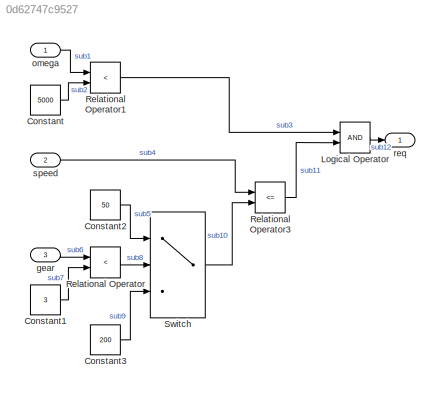
MODEL slx_0d62747c9527
KIND model
CONFIG AbsTol = auto
CONFIG EnableMultiTasking = off
CONFIG FixedStep = auto
CONFIG MaxStep = auto
CONFIG MinStep = auto
CONFIG RelTol = 1e-3
CONFIG SampleTimeConstraint = Unconstrained
CONFIG Solver = ode45
CONFIG SolverName = ode45
CONFIG StartTime = 0.0
CONFIG StopTime = 10.0
BLOCK [Constant] Constant
  Value = 5000
BLOCK [Constant] Constant1
  Value = 3
BLOCK [Constant] Constant2
  Value = 50
BLOCK [Constant] Constant3
  Value = 200
BLOCK [Logic] Logical Operator
  AllPortsSameDT = off
  OutDataTypeStr = boolean
  Ports = [2, 1]
BLOCK [RelationalOperator] Relational Operator
  InputSameDT = off
  Operator = <
  OutDataTypeStr = boolean
  Ports = [2, 1]
BLOCK [RelationalOperator] Relational Operator1
  InputSameDT = off
  Operator = <
  OutDataTypeStr = boolean
  Ports = [2, 1]
BLOCK [RelationalOperator] Relational Operator3
  InputSameDT = off
  Operator = <=
  OutDataTypeStr = boolean
  Ports = [2, 1]
BLOCK [Switch] Switch
  Criteria = u2 ~= 0
  InputSameDT = off
  SaturateOnIntegerOverflow = off
BLOCK [Inport] gear
  IconDisplay = Port number
  Port = 3
BLOCK [Inport] omega
  IconDisplay = Port number
BLOCK [Outport] req
  IconDisplay = Port number
BLOCK [Inport] speed
  IconDisplay = Port number
  Port = 2
LINE Constant1:1 -> Relational Operator:2
LINE Constant2:1 -> Switch:1
LINE Constant3:1 -> Switch:3
LINE Constant:1 -> Relational Operator1:2
LINE Logical Operator:1 -> req:1
LINE Relational Operator1:1 -> Logical Operator:1
LINE Relational Operator3:1 -> Logical Operator:2
LINE Relational Operator:1 -> Switch:2
LINE Switch:1 -> Relational Operator3:2
LINE gear:1 -> Relational Operator:1
LINE omega:1 -> Relational Operator1:1
LINE speed:1 -> Relational Operator3:1
